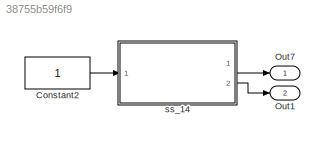
MODEL slx_38755b59f6f9
KIND model
CONFIG AbsTol = auto
CONFIG FixedStep = auto
CONFIG MaxStep = auto
CONFIG MinStep = auto
CONFIG RelTol = 1e-3
CONFIG SampleTimeConstraint = Unconstrained
CONFIG Solver = ode45
CONFIG SolverMode = Auto
CONFIG SolverName = ode45
CONFIG StartTime = 0.0
CONFIG StopTime = 10.0
BLOCK [Constant] Constant2
BLOCK [Outport] Out1
  IconDisplay = Port number
  Port = 2
BLOCK [Outport] Out7
  IconDisplay = Port number
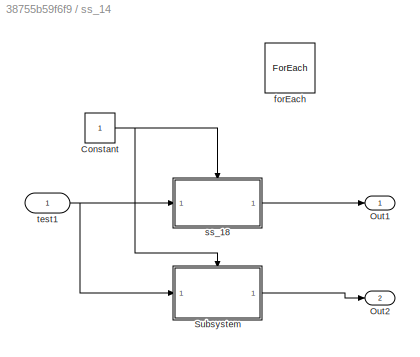
BLOCK [SubSystem] ss_14
  MinAlgLoopOccurrences = on
  Ports = [1, 2]
  RTWFileNameOpts = Use subsystem name
  RequestExecContextInheritance = off
  TreatAsAtomicUnit = on
BLOCK [Constant] ss_14/Constant
  OutDataTypeStr = boolean
  SampleTime = -1
BLOCK [Outport] ss_14/Out1
  ConcatenationDimension = 1
  IconDisplay = Port number
BLOCK [Outport] ss_14/Out2
  ConcatenationDimension = 1
  IconDisplay = Port number
  Port = 2
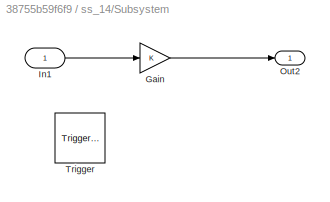
BLOCK [SubSystem] ss_14/Subsystem
  Ports = [1, 1, 0, 1]
  RequestExecContextInheritance = off
BLOCK [Gain] ss_14/Subsystem/Gain
  OutDataTypeStr = Inherit: Inherit via internal rule
  ParamDataTypeStr = Inherit: Inherit via internal rule
  SaturateOnIntegerOverflow = off
BLOCK [Inport] ss_14/Subsystem/In1
  IconDisplay = Port number
  Interpolate = off
  OutDataTypeStr = double
  PortDimensions = 1
  SamplingMode = Sample based
  SignalType = real
BLOCK [Outport] ss_14/Subsystem/Out2
  IconDisplay = Port number
  InitialOutput = 4
BLOCK [TriggerPort] ss_14/Subsystem/Trigger
  OutDataTypeStr = boolean
  OutputDataType = double
  PortDimensions = 1
  Ports = [0, 1]
  PropagateVarSize = Only when enabling
  SampleTime = -1
  ShowOutputPort = on
  StatesWhenEnabling = reset
  TriggerSignalSampleTime = [0.10000000000000001,0]
BLOCK [ForEach] ss_14/forEach
  Ports = []
BLOCK [ModelReference] ss_14/ss_18
  CopyOfModelName = ref.slx
  ModelNameDialog = ref.slx
  ModelReferenceVersion = 1.259
  Ports = [1, 1, 0, 1]
  TriggerPortName = Trigger
  TriggerPortTriggerType = rising
BLOCK [Inport] ss_14/test1
  IconDisplay = Port number
  Partition = on
  PartitionDimension = 1
  PartitionWidth = 1
LINE Constant2:1 -> ss_14:1
NET ss_14/Constant:1 -> ss_14/Subsystem:trigger, ss_14/ss_18:trigger
LINE ss_14/Subsystem/Gain:1 -> ss_14/Subsystem/Out2:1
LINE ss_14/Subsystem/In1:1 -> ss_14/Subsystem/Gain:1
LINE ss_14/Subsystem:1 -> ss_14/Out2:1
LINE ss_14/ss_18:1 -> ss_14/Out1:1
NET ss_14/test1:1 -> ss_14/Subsystem:1, ss_14/ss_18:1
LINE ss_14:1 -> Out7:1
LINE ss_14:2 -> Out1:1
note: NET lines group one-source signal fan-out (src -> all destinations, sorted); 1:1 wires keep LINE
